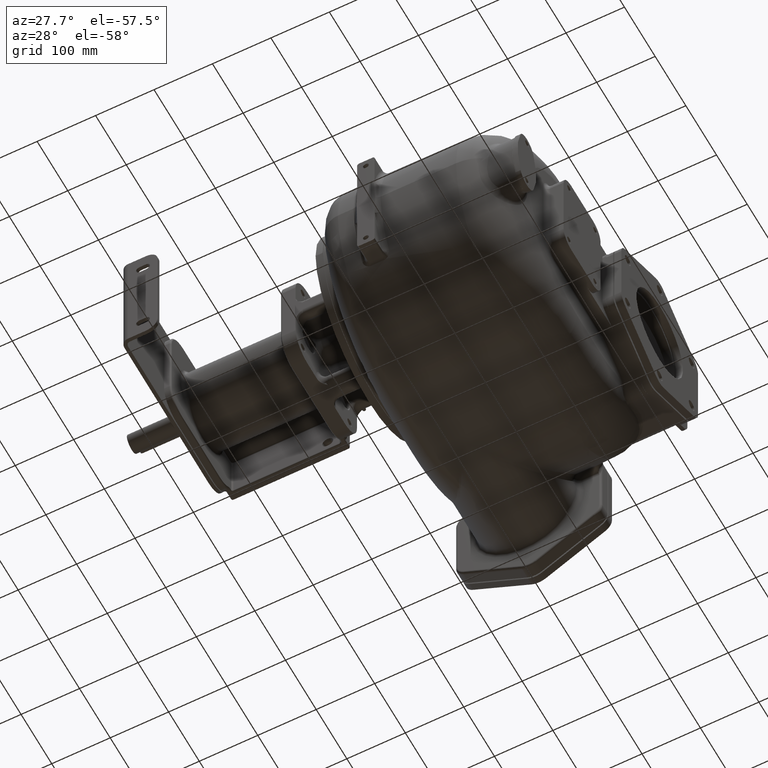
[diagram: clean part render]
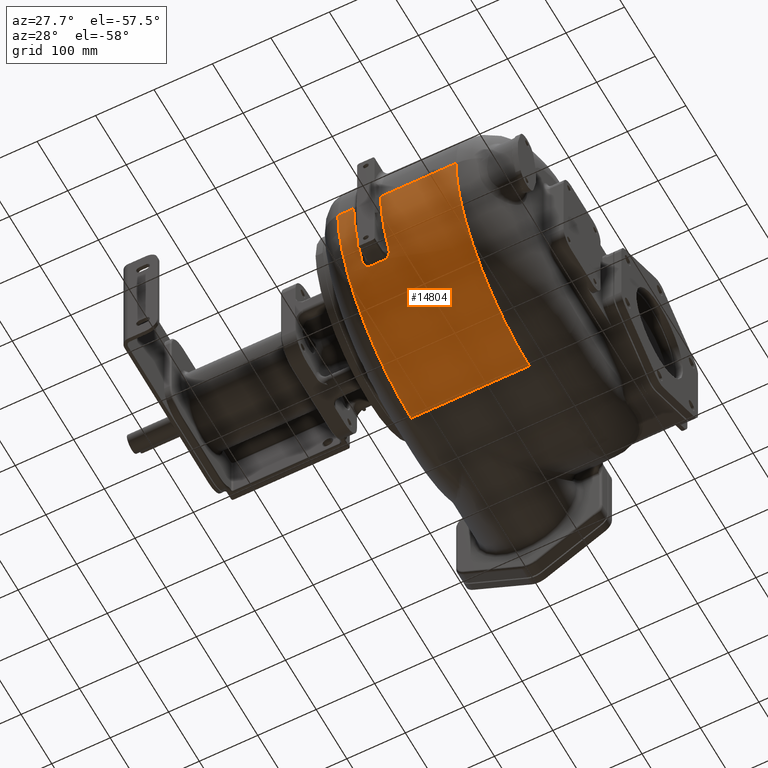
[diagram: same view with one face highlighted and labeled with its STEP entity id]
A machine part, auxiliary view. The second image highlights one B-rep face of the part: STEP entity #14804.
In plain terms, the highlighted cylindrical surface (partial cylindrical patch) has radius 239 mm, axis along (-1, 0, 0).
Its self-contained STEP definition (entity closure, byte-faithful):
#5962=CARTESIAN_POINT('',(2.3E1,2.43E2,-1.3E1));
#5963=DIRECTION('',(-1.E0,0.E0,0.E0));
#5964=DIRECTION('',(0.E0,-8.850020926313E-1,-4.655870445344E-1));
#5965=AXIS2_PLACEMENT_3D('',#5962,#5963,#5964);
#5967=CARTESIAN_POINT('',(1.52E2,2.43E2,-1.3E1));
#5968=DIRECTION('',(1.E0,0.E0,0.E0));
#5969=DIRECTION('',(0.E0,-1.E0,0.E0));
#5970=AXIS2_PLACEMENT_3D('',#5967,#5968,#5969);
#5972=DIRECTION('',(1.E0,2.677550150795E-13,0.E0));
#5973=VECTOR('',#5972,2.02E2);
#5974=CARTESIAN_POINT('',(-5.E1,2.43E2,-2.52E2));
#5975=LINE('',#5974,#5973);
#5976=CARTESIAN_POINT('',(-5.E1,2.43E2,-1.3E1));
#5977=DIRECTION('',(-1.E0,0.E0,0.E0));
#5978=DIRECTION('',(0.E0,0.E0,-1.E0));
#5979=AXIS2_PLACEMENT_3D('',#5976,#5977,#5978);
#5981=CARTESIAN_POINT('',(-2.3E1,2.43E2,-1.3E1));
#5982=DIRECTION('',(1.E0,0.E0,0.E0));
#5983=DIRECTION('',(0.E0,-1.E0,-1.705748513148E-14));
#5984=AXIS2_PLACEMENT_3D('',#5981,#5982,#5983);
#5986=CARTESIAN_POINT('',(-2.299999999663E1,3.148463380979E1,
-1.242752332142E2));
#5987=CARTESIAN_POINT('',(-2.299999836526E1,3.155494914624E1,
-1.244089271713E2));
#5988=CARTESIAN_POINT('',(-2.299544571718E1,3.169585695109E1,
-1.246765768641E2));
#5989=CARTESIAN_POINT('',(-2.297369870507E1,3.190902672410E1,
-1.250788213259E2));
#5990=CARTESIAN_POINT('',(-2.293758727208E1,3.212296761810E1,
-1.254808803070E2));
#5991=CARTESIAN_POINT('',(-2.288700140736E1,3.233738737738E1,
-1.258819375098E2));
#5992=CARTESIAN_POINT('',(-2.282205280388E1,3.255179020134E1,
-1.262811513106E2));
#5993=CARTESIAN_POINT('',(-2.274286147507E1,3.276570229928E1,
-1.266776460164E2));
#5994=CARTESIAN_POINT('',(-2.264958971363E1,3.297874707891E1,
-1.270707650215E2));
#5995=CARTESIAN_POINT('',(-2.254234518951E1,3.319072600613E1,
-1.274601829353E2));
#5996=CARTESIAN_POINT('',(-2.242124660237E1,3.340142282785E1,
-1.278455488427E2));
#5997=CARTESIAN_POINT('',(-2.228647429030E1,3.361054983614E1,
-1.282263873018E2));
#5998=CARTESIAN_POINT('',(-2.213829024516E1,3.381775724667E1,
-1.286021187915E2));
#5999=CARTESIAN_POINT('',(-2.197699287826E1,3.402274152220E1,
-1.289722560883E2));
#6000=CARTESIAN_POINT('',(-2.180305042037E1,3.422498948576E1,
-1.293359430460E2));
#6001=CARTESIAN_POINT('',(-2.161699640929E1,3.442392955884E1,
-1.296922325546E2));
#6002=CARTESIAN_POINT('',(-2.141945246941E1,3.461905200155E1,
-1.300403023991E2));
#6003=CARTESIAN_POINT('',(-2.121058000647E1,3.481034255697E1,
-1.303802201604E2));
#6004=CARTESIAN_POINT('',(-2.099049728464E1,3.499778470590E1,
-1.307120457700E2));
#6005=CARTESIAN_POINT('',(-2.075934933007E1,3.518131296851E1,
-1.310357501748E2));
#6006=CARTESIAN_POINT('',(-2.051757687327E1,3.536064335895E1,
-1.313509198747E2));
#6007=CARTESIAN_POINT('',(-2.026557396768E1,3.553557475236E1,
-1.316572903404E2));
#6008=CARTESIAN_POINT('',(-2.000402017191E1,3.570575797041E1,
-1.319543401031E2));
#6009=CARTESIAN_POINT('',(-1.973378128537E1,3.587067274365E1,
-1.322412552787E2));
#6010=CARTESIAN_POINT('',(-1.945587692114E1,3.602983163548E1,
-1.325172871840E2));
#6011=CARTESIAN_POINT('',(-1.917068474738E1,3.618316596231E1,
-1.327824159810E2));
#6012=CARTESIAN_POINT('',(-1.887840205079E1,3.633069074233E1,
-1.330367620314E2));
#6013=CARTESIAN_POINT('',(-1.857922601014E1,3.647240494990E1,
-1.332804133298E2));
#6014=CARTESIAN_POINT('',(-1.827334579163E1,3.660830274691E1,
-1.335134452316E2));
#6015=CARTESIAN_POINT('',(-1.796093094277E1,3.673838145092E1,
-1.337359342899E2));
#6016=CARTESIAN_POINT('',(-1.764208815273E1,3.686265973166E1,
-1.339479893161E2));
#6017=CARTESIAN_POINT('',(-1.731704815905E1,3.698110111849E1,
-1.341496205953E2));
#6018=CARTESIAN_POINT('',(-1.698700173358E1,3.709332802157E1,
-1.343402562594E2));
#6019=CARTESIAN_POINT('',(-1.665309246959E1,3.719904956109E1,
-1.345194729997E2));
#6020=CARTESIAN_POINT('',(-1.631594872970E1,3.729817613825E1,
-1.346871868658E2));
#6021=CARTESIAN_POINT('',(-1.597618723757E1,3.739063624616E1,
-1.348433409132E2));
#6022=CARTESIAN_POINT('',(-1.563358823750E1,3.747657428809E1,
-1.349882380764E2));
#6023=CARTESIAN_POINT('',(-1.528788909561E1,3.755609493573E1,
-1.351221081566E2));
#6024=CARTESIAN_POINT('',(-1.493868776013E1,3.762926773688E1,
-1.352451167674E2));
#6025=CARTESIAN_POINT('',(-1.458595320768E1,3.769621378200E1,
-1.353575111518E2));
#6026=CARTESIAN_POINT('',(-1.423041625298E1,3.775687149314E1,
-1.354592274528E2));
#6027=CARTESIAN_POINT('',(-1.387266751619E1,3.781119475128E1,
-1.355502244414E2));
#6028=CARTESIAN_POINT('',(-1.351329928655E1,3.785912669853E1,
-1.356304391680E2));
#6029=CARTESIAN_POINT('',(-1.315287641115E1,3.790060616436E1,
-1.356997984393E2));
#6030=CARTESIAN_POINT('',(-1.279195431143E1,3.793557154360E1,
-1.357582227693E2));
#6031=CARTESIAN_POINT('',(-1.243106688391E1,3.796393985081E1,
-1.358056004625E2));
#6032=CARTESIAN_POINT('',(-1.207077280934E1,3.798569256028E1,
-1.358418968258E2));
#6033=CARTESIAN_POINT('',(-1.171172212800E1,3.800107888257E1,
-1.358676200423E2));
#6034=CARTESIAN_POINT('',(-1.135442872910E1,3.801011397163E1,
-1.358825092278E2));
#6035=CARTESIAN_POINT('',(-1.111789370625E1,3.801235364990E1,
-1.358867020281E2));
#6036=CARTESIAN_POINT('',(-1.099999996762E1,3.801237681783E1,
-1.358867155087E2));
#6038=DIRECTION('',(9.999999999777E-1,5.734229234541E-6,3.437022346862E-6));
#6039=VECTOR('',#6038,2.199999996815E1);
#6040=CARTESIAN_POINT('',(-1.099999996762E1,3.801237681783E1,
-1.358867155087E2));
#6041=LINE('',#6040,#6039);
#6042=CARTESIAN_POINT('',(1.100000000004E1,3.801250297088E1,-1.358866398942E2));
#6043=CARTESIAN_POINT('',(1.112212603662E1,3.801251155550E1,-1.358866439727E2));
#6044=CARTESIAN_POINT('',(1.136606542805E1,3.801028636453E1,-1.358829460257E2));
#6045=CARTESIAN_POINT('',(1.173110410378E1,3.800043117133E1,-1.358664994992E2));
#6046=CARTESIAN_POINT('',(1.209506953896E1,3.798418160911E1,-1.358393860036E2));
#6047=CARTESIAN_POINT('',(1.245784341292E1,3.796162703880E1,-1.358017362159E2));
#6048=CARTESIAN_POINT('',(1.281928404401E1,3.793281150980E1,-1.357536129456E2));
#6049=CARTESIAN_POINT('',(1.317923580334E1,3.789773592839E1,-1.356950003449E2));
#6050=CARTESIAN_POINT('',(1.353753275507E1,3.785636212671E1,-1.356258143497E2));
#6051=CARTESIAN_POINT('',(1.389390331055E1,3.780858892002E1,-1.355458612519E2));
#6052=CARTESIAN_POINT('',(1.424844240136E1,3.775431113822E1,-1.354549361850E2));
#6053=CARTESIAN_POINT('',(1.460145376909E1,3.769354386218E1,-1.353530313114E2));
#6054=CARTESIAN_POINT('',(1.495311469856E1,3.762623286264E1,-1.352400184875E2));
#6055=CARTESIAN_POINT('',(1.530365167129E1,3.755226448495E1,-1.351156647845E2));
#6056=CARTESIAN_POINT('',(1.565209283721E1,3.747174753154E1,-1.349801065720E2));
#6057=CARTESIAN_POINT('',(1.599732215321E1,3.738486445003E1,-1.348336013393E2));
#6058=CARTESIAN_POINT('',(1.633824358159E1,3.729183234942E1,-1.346764628203E2));
#6059=CARTESIAN_POINT('',(1.667382031298E1,3.719287806364E1,-1.345090200775E2));
#6060=CARTESIAN_POINT('',(1.700456530182E1,3.708780886840E1,-1.343308892036E2));
#6061=CARTESIAN_POINT('',(1.733094664989E1,3.697644583588E1,-1.341417027281E2));
#6062=CARTESIAN_POINT('',(1.765301055678E1,3.685868961059E1,-1.339412220976E2));
#6063=CARTESIAN_POINT('',(1.797075103834E1,3.673442863640E1,-1.337291815815E2));
#6064=CARTESIAN_POINT('',(1.828345425241E1,3.660381709988E1,-1.335057638458E2));
#6065=CARTESIAN_POINT('',(1.859040715376E1,3.646704781113E1,-1.332712158752E2));
#6066=CARTESIAN_POINT('',(1.889090295221E1,3.632434036667E1,-1.330258293892E2));
#6067=CARTESIAN_POINT('',(1.918422626095E1,3.617595429130E1,-1.327699646341E2));
#6068=CARTESIAN_POINT('',(1.946973312949E1,3.602214052602E1,-1.325039677636E2));
#6069=CARTESIAN_POINT('',(1.974676547167E1,3.586314660994E1,-1.322281799399E2));
#6070=CARTESIAN_POINT('',(2.001486930372E1,3.569917415996E1,-1.319428640012E2));
#6071=CARTESIAN_POINT('',(2.027404240907E1,3.553015684453E1,-1.316478149261E2));
#6072=CARTESIAN_POINT('',(2.052421715043E1,3.535603107555E1,-1.313428265398E2));
#6073=CARTESIAN_POINT('',(2.076504790878E1,3.517690317989E1,-1.310279858960E2));
#6074=CARTESIAN_POINT('',(2.099594896785E1,3.499308712080E1,-1.307037458074E2));
#6075=CARTESIAN_POINT('',(2.121642608039E1,3.480485775548E1,-1.303704936483E2));
#6076=CARTESIAN_POINT('',(2.142584582678E1,3.461270188481E1,-1.300289976230E2));
#6077=CARTESIAN_POINT('',(2.162351974698E1,3.441709946399E1,-1.296800237579E2));
#6078=CARTESIAN_POINT('',(2.180885398328E1,3.421855930579E1,-1.293244010539E2));
#6079=CARTESIAN_POINT('',(2.198170642599E1,3.401719329324E1,-1.289622554978E2));
#6080=CARTESIAN_POINT('',(2.214193280148E1,3.381309679910E1,-1.285936834947E2));
#6081=CARTESIAN_POINT('',(2.228933942913E1,3.360641212753E1,-1.282188670275E2));
#6082=CARTESIAN_POINT('',(2.242358675561E1,3.339751423134E1,-1.278384150100E2));
#6083=CARTESIAN_POINT('',(2.254440175083E1,3.318674849044E1,-1.274528922629E2));
#6084=CARTESIAN_POINT('',(2.265152258856E1,3.297453323554E1,-1.270630070392E2));
#6085=CARTESIAN_POINT('',(2.274467827375E1,3.276135378073E1,-1.266696035759E2));
#6086=CARTESIAN_POINT('',(2.282360805033E1,3.254768923717E1,-1.262735308973E2));
#6087=CARTESIAN_POINT('',(2.288818460054E1,3.233392549271E1,-1.258754754124E2));
#6088=CARTESIAN_POINT('',(2.293835899493E1,3.212037143306E1,-1.254760066854E2));
#6089=CARTESIAN_POINT('',(2.297408683636E1,3.190738263179E1,-1.250757353704E2));
#6090=CARTESIAN_POINT('',(2.299550051197E1,3.169517456813E1,-1.246752330453E2));
#6091=CARTESIAN_POINT('',(2.300001473082E1,3.155468601772E1,-1.244085356221E2));
#6092=CARTESIAN_POINT('',(2.299999999938E1,3.148454565743E1,-1.242752795285E2));
#6205=CARTESIAN_POINT('',(2.3E1,4.000000004847E0,-1.299856304685E1));
#6361=DIRECTION('',(9.999999992041E-1,1.908062513054E-10,3.989782963278E-5));
#6362=VECTOR('',#6361,2.700000002149E1);
#6363=CARTESIAN_POINT('',(-5.E1,4.E0,-1.300000000001E1));
#6364=LINE('',#6363,#6362);
#6375=DIRECTION('',(9.999999999845E-1,-1.776500049536E-11,-5.569583433951E-6));
#6376=VECTOR('',#6375,1.290000000020E2);
#6377=CARTESIAN_POINT('',(2.3E1,4.000000002292E0,-1.299928152342E1));
#6378=LINE('',#6377,#6376);
#6508=CARTESIAN_POINT('',(-2.3E1,4.000000009711E0,-1.299784551722E1));
#7715=CARTESIAN_POINT('',(-5.E1,2.43E2,-2.52E2));
#7716=CARTESIAN_POINT('',(1.52E2,2.430000000001E2,-2.52E2));
#7717=VERTEX_POINT('',#7715);
#7718=VERTEX_POINT('',#7716);
#7803=CARTESIAN_POINT('',(-5.E1,4.E0,-1.3E1));
#7804=VERTEX_POINT('',#7803);
#7815=CARTESIAN_POINT('',(1.52E2,4.E0,-1.3E1));
#7816=VERTEX_POINT('',#7815);
#7842=VERTEX_POINT('',#6508);
#7927=VERTEX_POINT('',#6205);
#8095=CARTESIAN_POINT('',(2.3E1,3.148449986113E1,-1.242753036437E2));
#8096=VERTEX_POINT('',#8095);
#8099=VERTEX_POINT('',#6042);
#8101=CARTESIAN_POINT('',(-1.099999996762E1,3.801237681783E1,
-1.358867155087E2));
#8102=VERTEX_POINT('',#8101);
#8105=VERTEX_POINT('',#5986);
#14780=CARTESIAN_POINT('',(-8.7E1,2.43E2,-1.3E1));
#14781=DIRECTION('',(-1.E0,0.E0,0.E0));
#14782=DIRECTION('',(0.E0,0.E0,1.E0));
#14783=AXIS2_PLACEMENT_3D('',#14780,#14781,#14782);
#14784=CYLINDRICAL_SURFACE('',#14783,2.39E2);
#14786=ORIENTED_EDGE('',*,*,#14785,.T.);
#14788=ORIENTED_EDGE('',*,*,#14787,.T.);
#14789=ORIENTED_EDGE('',*,*,#13961,.T.);
#14790=ORIENTED_EDGE('',*,*,#11735,.F.);
#14791=ORIENTED_EDGE('',*,*,#11906,.T.);
#14793=ORIENTED_EDGE('',*,*,#14792,.T.);
#14795=ORIENTED_EDGE('',*,*,#14794,.T.);
#14797=ORIENTED_EDGE('',*,*,#14796,.T.);
#14799=ORIENTED_EDGE('',*,*,#14798,.T.);
#14801=ORIENTED_EDGE('',*,*,#14800,.T.);
#14802=EDGE_LOOP('',(#14786,#14788,#14789,#14790,#14791,#14793,#14795,#14797,
#14799,#14801));
#14803=FACE_OUTER_BOUND('',#14802,.F.);
#14804=ADVANCED_FACE('',(#14803),#14784,.T.);
#5966=CIRCLE('',#5965,2.39E2);
#5971=CIRCLE('',#5970,2.39E2);
#5980=CIRCLE('',#5979,2.39E2);
#5985=CIRCLE('',#5984,2.39E2);
#6037=B_SPLINE_CURVE_WITH_KNOTS('',3,(#5986,#5987,#5988,#5989,#5990,#5991,#5992,
#5993,#5994,#5995,#5996,#5997,#5998,#5999,#6000,#6001,#6002,#6003,#6004,#6005,
#6006,#6007,#6008,#6009,#6010,#6011,#6012,#6013,#6014,#6015,#6016,#6017,#6018,
#6019,#6020,#6021,#6022,#6023,#6024,#6025,#6026,#6027,#6028,#6029,#6030,#6031,
#6032,#6033,#6034,#6035,#6036),.UNSPECIFIED.,.F.,.F.,(4,1,1,1,1,1,1,1,1,1,1,1,1,
1,1,1,1,1,1,1,1,1,1,1,1,1,1,1,1,1,1,1,1,1,1,1,1,1,1,1,1,1,1,1,1,1,1,1,4),(0.E0,
2.083333333333E-2,4.166666666667E-2,6.25E-2,8.333333333333E-2,1.041666666667E-1,
1.25E-1,1.458333333333E-1,1.666666666667E-1,1.875E-1,2.083333333333E-1,
2.291666666667E-1,2.5E-1,2.708333333333E-1,2.916666666667E-1,3.125E-1,
3.333333333333E-1,3.541666666667E-1,3.75E-1,3.958333333333E-1,4.166666666667E-1,
4.375E-1,4.583333333333E-1,4.791666666667E-1,5.E-1,5.208333333333E-1,
5.416666666667E-1,5.625E-1,5.833333333333E-1,6.041666666667E-1,6.25E-1,
6.458333333333E-1,6.666666666667E-1,6.875E-1,7.083333333333E-1,
7.291666666667E-1,7.5E-1,7.708333333333E-1,7.916666666667E-1,8.125E-1,
8.333333333333E-1,8.541666666667E-1,8.75E-1,8.958333333333E-1,9.166666666667E-1,
9.375E-1,9.583333333333E-1,9.791666666667E-1,1.E0),.UNSPECIFIED.);
#6093=B_SPLINE_CURVE_WITH_KNOTS('',3,(#6042,#6043,#6044,#6045,#6046,#6047,#6048,
#6049,#6050,#6051,#6052,#6053,#6054,#6055,#6056,#6057,#6058,#6059,#6060,#6061,
#6062,#6063,#6064,#6065,#6066,#6067,#6068,#6069,#6070,#6071,#6072,#6073,#6074,
#6075,#6076,#6077,#6078,#6079,#6080,#6081,#6082,#6083,#6084,#6085,#6086,#6087,
#6088,#6089,#6090,#6091,#6092),.UNSPECIFIED.,.F.,.F.,(4,1,1,1,1,1,1,1,1,1,1,1,1,
1,1,1,1,1,1,1,1,1,1,1,1,1,1,1,1,1,1,1,1,1,1,1,1,1,1,1,1,1,1,1,1,1,1,1,4),(0.E0,
2.083333333333E-2,4.166666666667E-2,6.25E-2,8.333333333333E-2,1.041666666667E-1,
1.25E-1,1.458333333333E-1,1.666666666667E-1,1.875E-1,2.083333333333E-1,
2.291666666667E-1,2.5E-1,2.708333333333E-1,2.916666666667E-1,3.125E-1,
3.333333333333E-1,3.541666666667E-1,3.75E-1,3.958333333333E-1,4.166666666667E-1,
4.375E-1,4.583333333333E-1,4.791666666667E-1,5.E-1,5.208333333333E-1,
5.416666666667E-1,5.625E-1,5.833333333333E-1,6.041666666667E-1,6.25E-1,
6.458333333333E-1,6.666666666667E-1,6.875E-1,7.083333333333E-1,
7.291666666667E-1,7.5E-1,7.708333333333E-1,7.916666666667E-1,8.125E-1,
8.333333333333E-1,8.541666666667E-1,8.75E-1,8.958333333333E-1,9.166666666667E-1,
9.375E-1,9.583333333333E-1,9.791666666667E-1,1.E0),.UNSPECIFIED.);
#11735=EDGE_CURVE('',#7717,#7718,#5975,.T.);
#11906=EDGE_CURVE('',#7717,#7804,#5980,.T.);
#13961=EDGE_CURVE('',#7816,#7718,#5971,.T.);
#14785=EDGE_CURVE('',#8096,#7927,#5966,.T.);
#14787=EDGE_CURVE('',#7927,#7816,#6378,.T.);
#14792=EDGE_CURVE('',#7804,#7842,#6364,.T.);
#14794=EDGE_CURVE('',#7842,#8105,#5985,.T.);
#14796=EDGE_CURVE('',#8105,#8102,#6037,.T.);
#14798=EDGE_CURVE('',#8102,#8099,#6041,.T.);
#14800=EDGE_CURVE('',#8099,#8096,#6093,.T.);